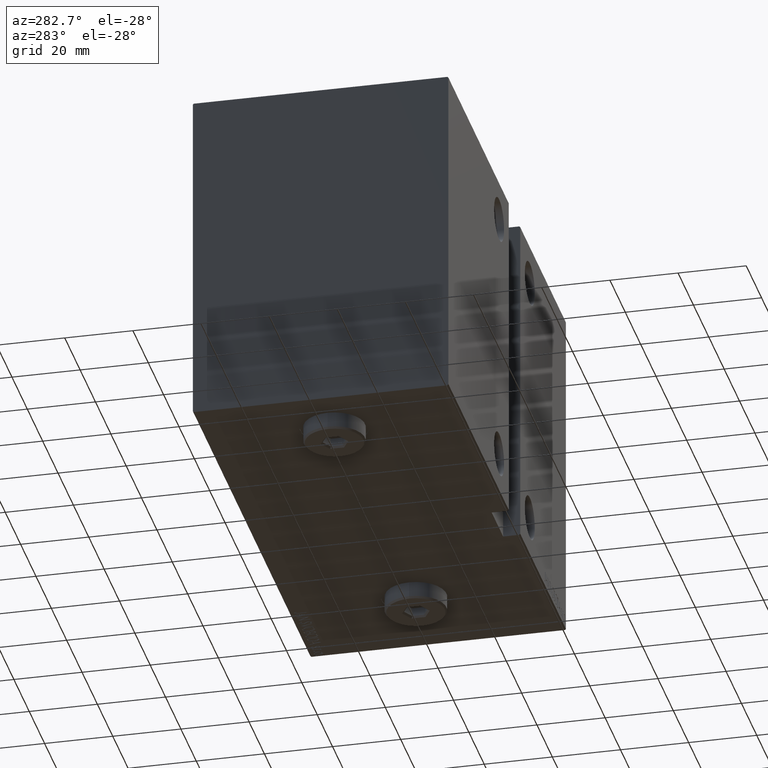
[diagram: clean part render]
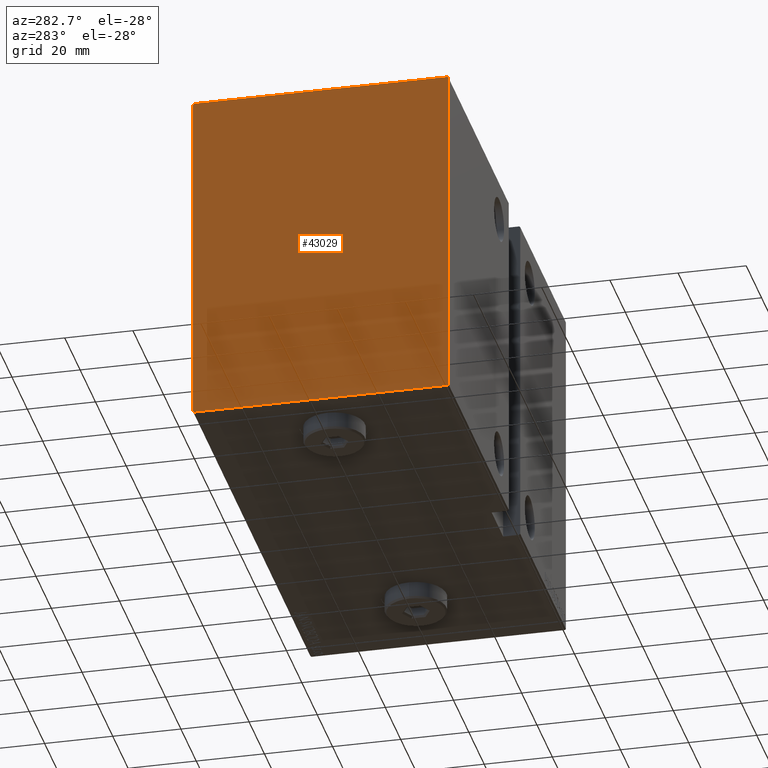
[diagram: same view with one face highlighted and labeled with its STEP entity id]
A machine part, auxiliary view. The second image highlights one B-rep face of the part: STEP entity #43029.
In plain terms, the highlighted planar face has unit normal (-1, -0, 0).
Its self-contained STEP definition (entity closure, byte-faithful):
#234 = VERTEX_POINT ( 'NONE', #40751 ) ;
#802 = EDGE_CURVE ( 'NONE', #41883, #43542, #2096, .T. ) ;
#920 = EDGE_LOOP ( 'NONE', ( #929, #29112, #29042, #42253, #5104, #27430, #10663, #29055 ) ) ;
#929 = ORIENTED_EDGE ( 'NONE', *, *, #8524, .T. ) ;
#945 = DIRECTION ( 'NONE',  ( 0.000000000000000000, 1.000000000000000000, 0.000000000000000000 ) ) ;
#1221 = LINE ( 'NONE', #14919, #16415 ) ;
#1679 = VERTEX_POINT ( 'NONE', #21197 ) ;
#2096 = LINE ( 'NONE', #36635, #24038 ) ;
#2373 = EDGE_CURVE ( 'NONE', #30770, #234, #42097, .T. ) ;
#3438 = DIRECTION ( 'NONE',  ( 1.000000000000000000, 0.000000000000000000, 0.000000000000000000 ) ) ;
#5104 = ORIENTED_EDGE ( 'NONE', *, *, #802, .T. ) ;
#5305 = DIRECTION ( 'NONE',  ( 0.000000000000000000, -1.387778780781445676E-16, 1.000000000000000000 ) ) ;
#5403 = CARTESIAN_POINT ( 'NONE',  ( 153.0000000000000000, 37.20000000000000995, 50.00000000000000000 ) ) ;
#7567 = AXIS2_PLACEMENT_3D ( 'NONE', #13549, #3438, #37313 ) ;
#7654 = CARTESIAN_POINT ( 'NONE',  ( 153.0000000000000000, -37.49999999999999289, 50.00000000000000000 ) ) ;
#8524 = EDGE_CURVE ( 'NONE', #234, #12572, #35041, .T. ) ;
#10663 = ORIENTED_EDGE ( 'NONE', *, *, #23403, .T. ) ;
#11885 = VERTEX_POINT ( 'NONE', #36240 ) ;
#12572 = VERTEX_POINT ( 'NONE', #29698 ) ;
#12589 = LINE ( 'NONE', #27296, #32419 ) ;
#12955 = EDGE_CURVE ( 'NONE', #43542, #21097, #12589, .T. ) ;
#13549 = CARTESIAN_POINT ( 'NONE',  ( 153.0000000000000000, 0.000000000000000000, 0.000000000000000000 ) ) ;
#14919 = CARTESIAN_POINT ( 'NONE',  ( 153.0000000000000000, 43.59999999999828901, 43.60000000000231779 ) ) ;
#15678 = VECTOR ( 'NONE', #945, 1000.000000000000000 ) ;
#16260 = PLANE ( 'NONE',  #7567 ) ;
#16303 = EDGE_CURVE ( 'NONE', #11885, #41883, #1221, .T. ) ;
#16415 = VECTOR ( 'NONE', #28590, 999.9999999999998863 ) ;
#17956 = VECTOR ( 'NONE', #35235, 1000.000000000000000 ) ;
#20822 = CARTESIAN_POINT ( 'NONE',  ( 153.0000000000000000, -37.49999999999999289, -49.69999999999998153 ) ) ;
#21097 = VERTEX_POINT ( 'NONE', #30171 ) ;
#21197 = CARTESIAN_POINT ( 'NONE',  ( 153.0000000000000000, 37.50000000000002132, -49.69999999999998153 ) ) ;
#21262 = VECTOR ( 'NONE', #28405, 1000.000000000000114 ) ;
#21541 = LINE ( 'NONE', #7654, #17956 ) ;
#21569 = CARTESIAN_POINT ( 'NONE',  ( 153.0000000000000000, -37.49999999999999289, -50.00000000000000000 ) ) ;
#21740 = VECTOR ( 'NONE', #40519, 1000.000000000000114 ) ;
#22332 = CARTESIAN_POINT ( 'NONE',  ( 153.0000000000000000, 37.50000000000002132, -50.00000000000000000 ) ) ;
#23403 = EDGE_CURVE ( 'NONE', #21097, #30770, #21541, .T. ) ;
#23631 = FACE_OUTER_BOUND ( 'NONE', #920, .T. ) ;
#24038 = VECTOR ( 'NONE', #26959, 1000.000000000000000 ) ;
#25905 = EDGE_CURVE ( 'NONE', #1679, #11885, #43649, .T. ) ;
#26251 = DIRECTION ( 'NONE',  ( 0.000000000000000000, -0.7071067811865474617, -0.7071067811865474617 ) ) ;
#26836 = LINE ( 'NONE', #33151, #21740 ) ;
#26959 = DIRECTION ( 'NONE',  ( 0.000000000000000000, -1.000000000000000000, 0.000000000000000000 ) ) ;
#27296 = CARTESIAN_POINT ( 'NONE',  ( 153.0000000000000000, -43.59999999999998721, 43.59999999999998721 ) ) ;
#27430 = ORIENTED_EDGE ( 'NONE', *, *, #12955, .T. ) ;
#28405 = DIRECTION ( 'NONE',  ( -0.000000000000000000, 0.7071067811865474617, -0.7071067811865474617 ) ) ;
#28590 = DIRECTION ( 'NONE',  ( -0.000000000000000000, -0.7071067811865802133, 0.7071067811865149322 ) ) ;
#29042 = ORIENTED_EDGE ( 'NONE', *, *, #25905, .T. ) ;
#29055 = ORIENTED_EDGE ( 'NONE', *, *, #2373, .T. ) ;
#29112 = ORIENTED_EDGE ( 'NONE', *, *, #33394, .T. ) ;
#29613 = CARTESIAN_POINT ( 'NONE',  ( 153.0000000000000000, -37.19999999999996732, 50.00000000000000000 ) ) ;
#29698 = CARTESIAN_POINT ( 'NONE',  ( 153.0000000000000000, 37.19999999999999574, -50.00000000000000000 ) ) ;
#30171 = CARTESIAN_POINT ( 'NONE',  ( 153.0000000000000000, -37.49999999999999289, 49.69999999999998153 ) ) ;
#30770 = VERTEX_POINT ( 'NONE', #20822 ) ;
#31597 = VECTOR ( 'NONE', #5305, 1000.000000000000000 ) ;
#32419 = VECTOR ( 'NONE', #26251, 1000.000000000000114 ) ;
#33151 = CARTESIAN_POINT ( 'NONE',  ( 153.0000000000000000, 43.60000000000000142, -43.60000000000000142 ) ) ;
#33394 = EDGE_CURVE ( 'NONE', #12572, #1679, #26836, .T. ) ;
#35041 = LINE ( 'NONE', #21569, #15678 ) ;
#35235 = DIRECTION ( 'NONE',  ( 0.000000000000000000, 0.000000000000000000, -1.000000000000000000 ) ) ;
#36240 = CARTESIAN_POINT ( 'NONE',  ( 153.0000000000000000, 37.50000000000000711, 49.70000000000003837 ) ) ;
#36635 = CARTESIAN_POINT ( 'NONE',  ( 153.0000000000000000, 37.50000000000000711, 50.00000000000000000 ) ) ;
#37313 = DIRECTION ( 'NONE',  ( 0.000000000000000000, 0.000000000000000000, -1.000000000000000000 ) ) ;
#38940 = CARTESIAN_POINT ( 'NONE',  ( 153.0000000000000000, -43.59999999999998721, -43.59999999999998721 ) ) ;
#40519 = DIRECTION ( 'NONE',  ( -0.000000000000000000, 0.7071067811865474617, 0.7071067811865474617 ) ) ;
#40751 = CARTESIAN_POINT ( 'NONE',  ( 153.0000000000000000, -37.19999999999996732, -50.00000000000000000 ) ) ;
#41883 = VERTEX_POINT ( 'NONE', #5403 ) ;
#42097 = LINE ( 'NONE', #38940, #21262 ) ;
#42253 = ORIENTED_EDGE ( 'NONE', *, *, #16303, .T. ) ;
#43029 = ADVANCED_FACE ( 'NONE', ( #23631 ), #16260, .T. ) ;
#43542 = VERTEX_POINT ( 'NONE', #29613 ) ;
#43649 = LINE ( 'NONE', #22332, #31597 ) ;